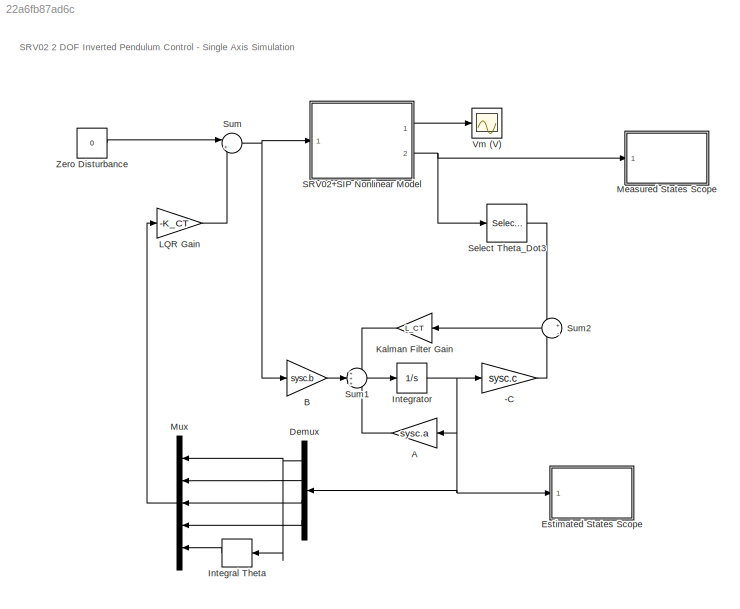
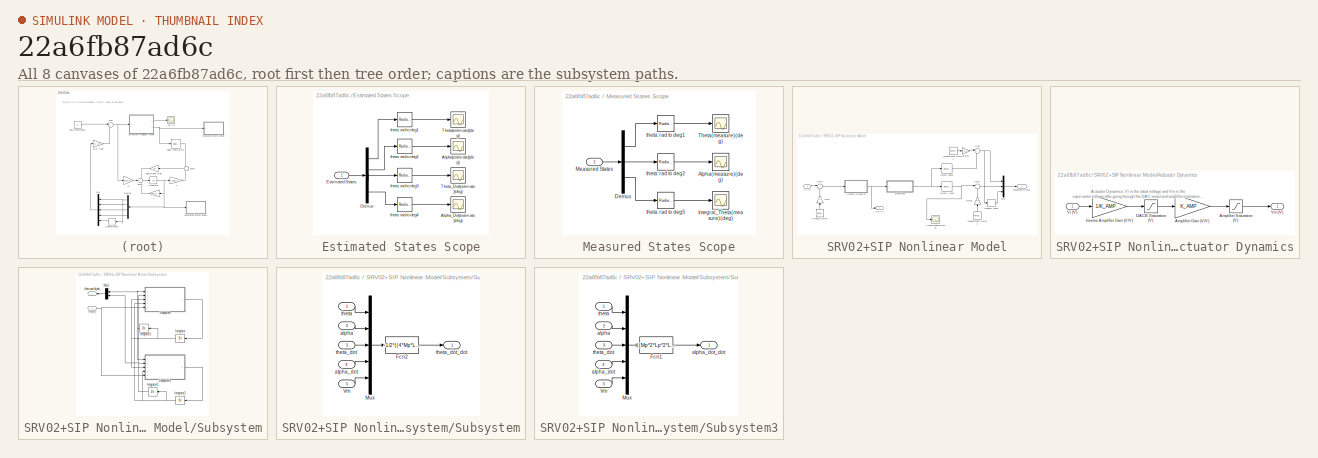
[diagram: thumbnail index - all 8 canvases of the model, root first then tree order]
MODEL slx_22a6fb87ad6c
KIND model
CONFIG AbsTol = auto
CONFIG EnableMultiTasking = on
CONFIG FixedStep = 0.002
CONFIG MaxStep = auto
CONFIG MinStep = auto
CONFIG RelTol = 1e-3
CONFIG SampleTimeConstraint = Unconstrained
CONFIG Solver = ode1
CONFIG SolverName = ode1
CONFIG StartTime = 0.0
CONFIG StopTime = 50
BLOCK [Gain] -C
  Gain = sysc.c
  Multiplication = Matrix(K*u)
  OutDataTypeStr = Inherit: Inherit via internal rule
  ParamDataTypeStr = Inherit: Inherit via internal rule
  SaturateOnIntegerOverflow = off
BLOCK [Gain] A
  Gain = sysc.a
  Multiplication = Matrix(K*u)
  OutDataTypeStr = Inherit: Inherit via internal rule
  ParamDataTypeStr = Inherit: Inherit via internal rule
  SaturateOnIntegerOverflow = off
BLOCK [Gain] B
  Gain = sysc.b
  Multiplication = Matrix(K*u)
  OutDataTypeStr = Inherit: Inherit via internal rule
  ParamDataTypeStr = Inherit: Inherit via internal rule
  SaturateOnIntegerOverflow = off
BLOCK [Demux] Demux
  DisplayOption = bar
  Ports = [1, 4]
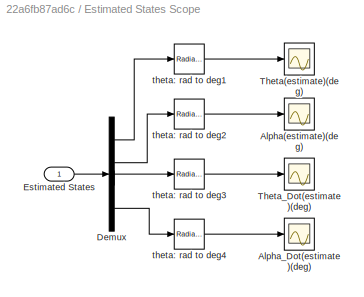
BLOCK [SubSystem] Estimated States Scope
  Ports = [1]
  RequestExecContextInheritance = off
BLOCK [Scope] Estimated States Scope/Alpha(estimate)(deg)
  Floating = off
  NumInputPorts = 1
  Ports = [1]
  ScopeSpecificationString = Simulink.scopes.TimeScopeBlockCfg('CurrentConfiguration', extmgr.ConfigurationSet(extmgr.Configuration('Core','General UI',true),extmgr.Configuration('Core','Source UI',true),extmgr.Configuration('Sources','WiredSimulink',true,'DataLoggingVariableName','data_alpha3','DataLoggingSaveFormat','Array','DataLoggingDecimation','1','DataLoggingDecimateData',true),extmgr.Configuration('Visuals','Time Doma...<+1733ch>
BLOCK [Scope] Estimated States Scope/Alpha_Dot(estimate)(deg)
  Floating = off
  NumInputPorts = 1
  Ports = [1]
  ScopeSpecificationString = C++SS(StrPVP('Location','[451, 291, 779, 463]'),StrPVP('Open','off'),MxPVP('AxesTitles',54,'struct(''axes1'',''%<SignalLabel>'')'),MxPVP('ScopeGraphics',57,'struct(''FigureColor'',''[0.5 0.5 0.5]'',''AxesColor'',''[0 0 0]'',''AxesTickColor'',''[1 1 1]'',''LineColors'',''[1 1 0;1 0 1;0 1 1;1 0 0;0 1 0;0 0 1]'',''LineStyles'',''-|-|-|-|-|-'',''LineWidths'',''[0.5 0.5 0.5 0.5 0.5 0.5]'',''MarkerStyle...<+282ch>
BLOCK [Demux] Estimated States Scope/Demux
  DisplayOption = bar
  Ports = [1, 4]
BLOCK [Inport] Estimated States Scope/Estimated States
  IconDisplay = Port number
BLOCK [Scope] Estimated States Scope/Theta(estimate)(deg)
  Floating = off
  NumInputPorts = 1
  Ports = [1]
  ScopeSpecificationString = Simulink.scopes.TimeScopeBlockCfg('CurrentConfiguration', extmgr.ConfigurationSet(extmgr.Configuration('Core','General UI',true),extmgr.Configuration('Core','Source UI',true),extmgr.Configuration('Sources','WiredSimulink',true,'DataLoggingVariableName','data_theta2','DataLoggingSaveFormat','Array','DataLoggingDecimation','1','DataLoggingDecimateData',true),extmgr.Configuration('Visuals','Time Doma...<+1741ch>
BLOCK [Scope] Estimated States Scope/Theta_Dot(estimate)(deg)
  Floating = off
  NumInputPorts = 1
  Ports = [1]
  ScopeSpecificationString = C++SS(StrPVP('Location','[389, 331, 713, 570]'),StrPVP('Open','off'),MxPVP('AxesTitles',54,'struct(''axes1'',''%<SignalLabel>'')'),MxPVP('ScopeGraphics',57,'struct(''FigureColor'',''[0.5 0.5 0.5]'',''AxesColor'',''[0 0 0]'',''AxesTickColor'',''[1 1 1]'',''LineColors'',''[1 1 0;1 0 1;0 1 1;1 0 0;0 1 0;0 0 1]'',''LineStyles'',''-|-|-|-|-|-'',''LineWidths'',''[0.5 0.5 0.5 0.5 0.5 0.5]'',''MarkerStyle...<+284ch>
BLOCK [Reference] Estimated States Scope/theta: rad to deg1  REF=simulink_extras/Transformations/Radians
to Degrees
  Ports = [1, 1]
  SourceBlock = simulink_extras/Transformations/Radians\nto Degrees
  SourceProductBaseCode = SL
  SourceProductName = Simulink
  SourceType = RadiansToDegrees
BLOCK [Reference] Estimated States Scope/theta: rad to deg2  REF=simulink_extras/Transformations/Radians
to Degrees
  Ports = [1, 1]
  SourceBlock = simulink_extras/Transformations/Radians\nto Degrees
  SourceProductBaseCode = SL
  SourceProductName = Simulink
  SourceType = RadiansToDegrees
BLOCK [Reference] Estimated States Scope/theta: rad to deg3  REF=simulink_extras/Transformations/Radians
to Degrees
  Ports = [1, 1]
  SourceBlock = simulink_extras/Transformations/Radians\nto Degrees
  SourceProductBaseCode = SL
  SourceProductName = Simulink
  SourceType = RadiansToDegrees
BLOCK [Reference] Estimated States Scope/theta: rad to deg4  REF=simulink_extras/Transformations/Radians
to Degrees
  Ports = [1, 1]
  SourceBlock = simulink_extras/Transformations/Radians\nto Degrees
  SourceProductBaseCode = SL
  SourceProductName = Simulink
  SourceType = RadiansToDegrees
BLOCK [DiscreteIntegrator] Integral Theta
  ICPrevOutput = DiscIntNeverNeededParam
  ICPrevScaledInput = DiscIntNeverNeededParam
  Ports = [1, 1]
  SampleTime = 0.002
BLOCK [Integrator] Integrator
  Ports = [1, 1]
BLOCK [Gain] Kalman Filter Gain
  Gain = L_CT
  Multiplication = Matrix(K*u)
  OutDataTypeStr = Inherit: Inherit via internal rule
  ParamDataTypeStr = Inherit: Inherit via internal rule
  SaturateOnIntegerOverflow = off
BLOCK [Gain] LQR Gain
  Gain = -K_CT
  Multiplication = Matrix(K*u)
BLOCK [SubSystem] Measured States Scope
  Ports = [1]
  RequestExecContextInheritance = off
BLOCK [Scope] Measured States Scope/Alpha(measure)(deg)
  Floating = off
  NumInputPorts = 1
  Ports = [1]
  ScopeSpecificationString = Simulink.scopes.TimeScopeBlockCfg('CurrentConfiguration', extmgr.ConfigurationSet(extmgr.Configuration('Core','General UI',true),extmgr.Configuration('Core','Source UI',true),extmgr.Configuration('Sources','WiredSimulink',true,'DataLoggingVariableName','data_alpha3','DataLoggingSaveFormat','Array','DataLoggingDecimation','1','DataLoggingDecimateData',true),extmgr.Configuration('Visuals','Time Doma...<+1733ch>
BLOCK [Demux] Measured States Scope/Demux
  DisplayOption = bar
  Outputs = 3
  Ports = [1, 3]
BLOCK [Scope] Measured States Scope/Integral_Theta(measure)(deg)
  Floating = off
  NumInputPorts = 1
  Ports = [1]
  ScopeSpecificationString = Simulink.scopes.TimeScopeBlockCfg('CurrentConfiguration', extmgr.ConfigurationSet(extmgr.Configuration('Core','General UI',true),extmgr.Configuration('Core','Source UI',true),extmgr.Configuration('Sources','WiredSimulink',true,'DataLoggingVariableName','data_alpha2','DataLoggingSaveFormat','Array','DataLoggingDecimation','1','DataLoggingDecimateData',true),extmgr.Configuration('Visuals','Time Doma...<+1759ch>
BLOCK [Inport] Measured States Scope/Measured States
  IconDisplay = Port number
BLOCK [Scope] Measured States Scope/Theta(measure)(deg)
  Floating = off
  NumInputPorts = 1
  Ports = [1]
  ScopeSpecificationString = Simulink.scopes.TimeScopeBlockCfg('CurrentConfiguration', extmgr.ConfigurationSet(extmgr.Configuration('Core','General UI',true),extmgr.Configuration('Core','Source UI',true),extmgr.Configuration('Sources','WiredSimulink',true,'DataLoggingVariableName','data_theta2','DataLoggingSaveFormat','Array','DataLoggingDecimation','1','DataLoggingDecimateData',true),extmgr.Configuration('Visuals','Time Doma...<+1767ch>
BLOCK [Reference] Measured States Scope/theta: rad to deg1  REF=simulink_extras/Transformations/Radians
to Degrees
  Ports = [1, 1]
  SourceBlock = simulink_extras/Transformations/Radians\nto Degrees
  SourceProductBaseCode = SL
  SourceProductName = Simulink
  SourceType = RadiansToDegrees
BLOCK [Reference] Measured States Scope/theta: rad to deg2  REF=simulink_extras/Transformations/Radians
to Degrees
  Ports = [1, 1]
  SourceBlock = simulink_extras/Transformations/Radians\nto Degrees
  SourceProductBaseCode = SL
  SourceProductName = Simulink
  SourceType = RadiansToDegrees
BLOCK [Reference] Measured States Scope/theta: rad to deg5  REF=simulink_extras/Transformations/Radians
to Degrees
  Ports = [1, 1]
  SourceBlock = simulink_extras/Transformations/Radians\nto Degrees
  SourceProductBaseCode = SL
  SourceProductName = Simulink
  SourceType = RadiansToDegrees
BLOCK [Mux] Mux
  DisplayOption = bar
  Inputs = 5
  Ports = [5, 1]
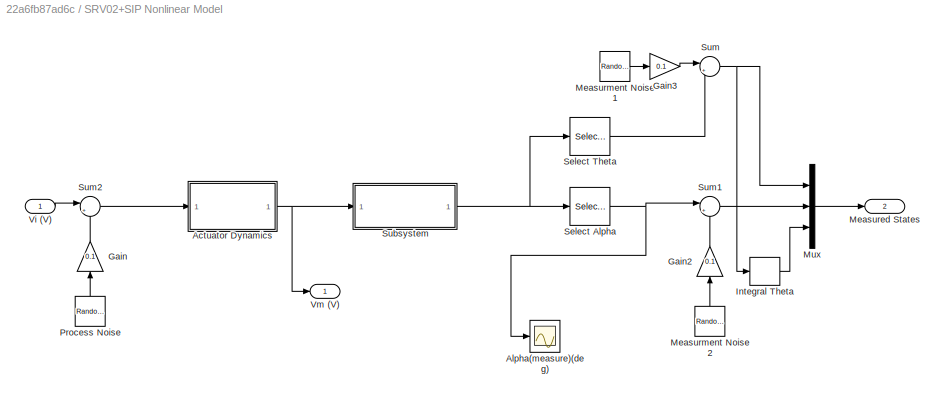
BLOCK [SubSystem] SRV02+SIP Nonlinear Model
  Ports = [1, 2]
  RequestExecContextInheritance = off
BLOCK [SubSystem] SRV02+SIP Nonlinear Model/Actuator Dynamics
  Ports = [1, 1]
  RequestExecContextInheritance = off
BLOCK [Gain] SRV02+SIP Nonlinear Model/Actuator Dynamics/Amplifier Gain (V//V)
  Gain = K_AMP
  OutDataTypeStr = Inherit: Inherit via internal rule
  ParamDataTypeStr = Inherit: Inherit via internal rule
  SaturateOnIntegerOverflow = off
BLOCK [Saturate] SRV02+SIP Nonlinear Model/Actuator Dynamics/Amplifier Saturation (V)
  InputPortMap = u0
  LowerLimit = -VMAX_AMP
  Ports = [1, 1]
  UpperLimit = VMAX_AMP
BLOCK [Saturate] SRV02+SIP Nonlinear Model/Actuator Dynamics/DACB Saturation (V)
  InputPortMap = u0
  LowerLimit = -VMAX_DAC
  Ports = [1, 1]
  UpperLimit = VMAX_DAC
BLOCK [Gain] SRV02+SIP Nonlinear Model/Actuator Dynamics/Inverse Amplifier Gain (V//V)
  Gain = 1/K_AMP
  OutDataTypeStr = Inherit: Inherit via internal rule
  ParamDataTypeStr = Inherit: Inherit via internal rule
  SaturateOnIntegerOverflow = off
BLOCK [Inport] SRV02+SIP Nonlinear Model/Actuator Dynamics/Vi (V)
  IconDisplay = Port number
BLOCK [Outport] SRV02+SIP Nonlinear Model/Actuator Dynamics/Vm (V)
  IconDisplay = Port number
  VectorParamsAs1DForOutWhenUnconnected = off
BLOCK [Scope] SRV02+SIP Nonlinear Model/Alpha(measure)(deg)
  Floating = off
  NumInputPorts = 1
  Ports = [1]
  ScopeSpecificationString = Simulink.scopes.TimeScopeBlockCfg('CurrentConfiguration', extmgr.ConfigurationSet(extmgr.Configuration('Core','General UI',true),extmgr.Configuration('Core','Source UI',true),extmgr.Configuration('Sources','WiredSimulink',true,'DataLoggingVariableName','ScopeData1','DataLoggingSaveFormat','Array','DataLoggingDecimation','1','DataLoggingDecimateData',true),extmgr.Configuration('Visuals','Time Domai...<+1692ch>
BLOCK [Gain] SRV02+SIP Nonlinear Model/Gain
  Gain = 0.1
  Multiplication = Matrix(K*u)
BLOCK [Gain] SRV02+SIP Nonlinear Model/Gain2
  Gain = 0.1
  Multiplication = Matrix(K*u)
BLOCK [Gain] SRV02+SIP Nonlinear Model/Gain3
  Gain = 0.1
  Multiplication = Matrix(K*u)
BLOCK [DiscreteIntegrator] SRV02+SIP Nonlinear Model/Integral Theta
  ICPrevOutput = DiscIntNeverNeededParam
  ICPrevScaledInput = DiscIntNeverNeededParam
  Ports = [1, 1]
  SampleTime = 0.002
BLOCK [Outport] SRV02+SIP Nonlinear Model/Measured States
  IconDisplay = Port number
  Port = 2
  VectorParamsAs1DForOutWhenUnconnected = off
BLOCK [RandomNumber] SRV02+SIP Nonlinear Model/Measurment Noise 1
  Variance = 0.01
BLOCK [RandomNumber] SRV02+SIP Nonlinear Model/Measurment Noise 2
  Variance = 0.01
BLOCK [Mux] SRV02+SIP Nonlinear Model/Mux
  DisplayOption = bar
  Inputs = 3
  Ports = [3, 1]
BLOCK [RandomNumber] SRV02+SIP Nonlinear Model/Process Noise
  Variance = 50
BLOCK [Selector] SRV02+SIP Nonlinear Model/Select Alpha
  IndexOptions = Index vector (dialog)
  Indices = 2
  InputPortWidth = 2
  OutputSizes = 1
  Ports = [1, 1]
BLOCK [Selector] SRV02+SIP Nonlinear Model/Select Theta
  IndexOptions = Index vector (dialog)
  Indices = 1
  InputPortWidth = 2
  OutputSizes = 1
  Ports = [1, 1]
BLOCK [SubSystem] SRV02+SIP Nonlinear Model/Subsystem
  Ports = [1, 1]
  RequestExecContextInheritance = off
BLOCK [Integrator] SRV02+SIP Nonlinear Model/Subsystem/Integrator
  InitialCondition = init_condi(3)
  Ports = [1, 1]
BLOCK [Integrator] SRV02+SIP Nonlinear Model/Subsystem/Integrator1
  InitialCondition = init_condi(1)
  Ports = [1, 1]
BLOCK [Integrator] SRV02+SIP Nonlinear Model/Subsystem/Integrator2
  InitialCondition = init_condi(4)
  Ports = [1, 1]
BLOCK [Integrator] SRV02+SIP Nonlinear Model/Subsystem/Integrator3
  InitialCondition = init_condi(2)
  Ports = [1, 1]
BLOCK [Mux] SRV02+SIP Nonlinear Model/Subsystem/Mux1
  DisplayOption = bar
  Inputs = 2
  Ports = [2, 1]
BLOCK [SubSystem] SRV02+SIP Nonlinear Model/Subsystem/Subsystem
  Ports = [5, 1]
  RequestExecContextInheritance = off
BLOCK [Fcn] SRV02+SIP Nonlinear Model/Subsystem/Subsystem/Fcn2
  Expr = -1/2*((4*Mp*Lp^2*u(2)*u(1)*u(4)-8*Co*u(5)+8*Dr*u(3))*Jp+(Mp^2*Lp^4*u(2)*u(3)+4*Mp*Lp*Lr*Dp)*u(4))/((4*Jr+4*Mp*Lr^2)*Jp+Mp*Lp^2*Jr)-(-1/2)*((Mp^2*Lp^3*Lr*u(3)^2+20*Mp^2*Lp^2*Lr*g)*u(2)-2*Mp*Lp^2*Dr*u(3)+2*Mp*Lp^2*Co*u(5))/((4*Jr+4*Mp*Lr^2)*Jp+Mp*Lp^2*Jr)
BLOCK [Mux] SRV02+SIP Nonlinear Model/Subsystem/Subsystem/Mux
  DisplayOption = bar
  Inputs = 5
  Ports = [5, 1]
BLOCK [Inport] SRV02+SIP Nonlinear Model/Subsystem/Subsystem/Vm
  IconDisplay = Port number
  Port = 5
BLOCK [Inport] SRV02+SIP Nonlinear Model/Subsystem/Subsystem/alpha
  IconDisplay = Port number
  Port = 2
BLOCK [Inport] SRV02+SIP Nonlinear Model/Subsystem/Subsystem/alpha_dot
  IconDisplay = Port number
  Port = 4
BLOCK [Inport] SRV02+SIP Nonlinear Model/Subsystem/Subsystem/theta
  IconDisplay = Port number
BLOCK [Inport] SRV02+SIP Nonlinear Model/Subsystem/Subsystem/theta_dot
  IconDisplay = Port number
  Port = 3
BLOCK [Outport] SRV02+SIP Nonlinear Model/Subsystem/Subsystem/theta_dot_dot
  IconDisplay = Port number
  VectorParamsAs1DForOutWhenUnconnected = off
BLOCK [SubSystem] SRV02+SIP Nonlinear Model/Subsystem/Subsystem3
  Ports = [5, 1]
  RequestExecContextInheritance = off
BLOCK [Fcn] SRV02+SIP Nonlinear Model/Subsystem/Subsystem3/Fcn1
  Expr = ((Mp^2*Lp^2*Lr^2+Mp*Lp^2*Jr)*u(3)^2+20*Jr*Mp*Lp*g+20*Mp^2*Lr^2*Lp*g)*u(2)/((4*Jr+4*Mp*Lr^2)*Jp+Mp*Lp^2*Jr)+(2*Mp*Lr*Lp*Co*u(5)-2*Mp*Lr*Lp*Dr*u(3)-(Mp^2*Lp^3*Lr*u(2)*u(3)+4*Jr*Dp+4*Mp*Lr^2*Dp)*u(4))/((4*Jr+4*Mp*Lr^2)*Jp+Mp*Lp^2*Jr)
BLOCK [Mux] SRV02+SIP Nonlinear Model/Subsystem/Subsystem3/Mux
  DisplayOption = bar
  Inputs = 5
  Ports = [5, 1]
BLOCK [Inport] SRV02+SIP Nonlinear Model/Subsystem/Subsystem3/Vm
  IconDisplay = Port number
  Port = 5
BLOCK [Inport] SRV02+SIP Nonlinear Model/Subsystem/Subsystem3/alpha
  IconDisplay = Port number
  Port = 2
BLOCK [Inport] SRV02+SIP Nonlinear Model/Subsystem/Subsystem3/alpha_dot
  IconDisplay = Port number
  Port = 4
BLOCK [Outport] SRV02+SIP Nonlinear Model/Subsystem/Subsystem3/alpha_dot_dot
  IconDisplay = Port number
  VectorParamsAs1DForOutWhenUnconnected = off
BLOCK [Inport] SRV02+SIP Nonlinear Model/Subsystem/Subsystem3/theta
  IconDisplay = Port number
BLOCK [Inport] SRV02+SIP Nonlinear Model/Subsystem/Subsystem3/theta_dot
  IconDisplay = Port number
  Port = 3
BLOCK [Inport] SRV02+SIP Nonlinear Model/Subsystem/Vm(V)
  IconDisplay = Port number
BLOCK [Outport] SRV02+SIP Nonlinear Model/Subsystem/theta and alpha
  IconDisplay = Port number
  VectorParamsAs1DForOutWhenUnconnected = off
BLOCK [Sum] SRV02+SIP Nonlinear Model/Sum
  IconShape = round
  InputSameDT = off
  Inputs = |++
  OutDataTypeStr = Inherit: Inherit via internal rule
  Ports = [2, 1]
  SaturateOnIntegerOverflow = off
BLOCK [Sum] SRV02+SIP Nonlinear Model/Sum1
  IconShape = round
  InputSameDT = off
  Inputs = |++
  OutDataTypeStr = Inherit: Inherit via internal rule
  Ports = [2, 1]
  SaturateOnIntegerOverflow = off
BLOCK [Sum] SRV02+SIP Nonlinear Model/Sum2
  IconShape = round
  InputSameDT = off
  Inputs = |++
  OutDataTypeStr = Inherit: Inherit via internal rule
  Ports = [2, 1]
  SaturateOnIntegerOverflow = off
BLOCK [Inport] SRV02+SIP Nonlinear Model/Vi (V)
  IconDisplay = Port number
BLOCK [Outport] SRV02+SIP Nonlinear Model/Vm (V)
  IconDisplay = Port number
  VectorParamsAs1DForOutWhenUnconnected = off
BLOCK [Selector] Select Theta_Dot3
  IndexOptions = Index vector (dialog)
  Indices = [1 2]
  InputPortWidth = 3
  OutputSizes = 1
  Ports = [1, 1]
BLOCK [Sum] Sum
  IconShape = round
  InputSameDT = off
  Inputs = |++
  OutDataTypeStr = Inherit: Inherit via internal rule
  Ports = [2, 1]
  SaturateOnIntegerOverflow = off
BLOCK [Sum] Sum1
  IconShape = round
  InputSameDT = off
  Inputs = +++
  OutDataTypeStr = Inherit: Inherit via internal rule
  Ports = [3, 1]
  SaturateOnIntegerOverflow = off
BLOCK [Sum] Sum2
  IconShape = round
  InputSameDT = off
  Inputs = +|-
  OutDataTypeStr = Inherit: Inherit via internal rule
  Ports = [2, 1]
  SaturateOnIntegerOverflow = off
BLOCK [Scope] Vm (V)
  Floating = off
  NumInputPorts = 1
  Ports = [1]
  ScopeSpecificationString = C++SS(StrPVP('Location','[31, 96, 1299, 819]'),StrPVP('Open','off'),StrPVP('TickLabels','on'),MxPVP('AxesTitles',54,'struct(''axes1'',''%<SignalLabel>'')'),StrPVP('TimeRange','5'),StrPVP('YMin','-1.17798'),StrPVP('YMax','1.242'),StrPVP('SaveName','data_vm'),StrPVP('LimitDataPoints','off'),StrPVP('DataFormat','Array'),StrPVP('Decimation','1'),StrPVP('BlockParamSampleInput','off'))
BLOCK [Constant] Zero Disturbance
  Value = 0
ANNOTATION (root): SRV02 2 DOF Inverted Pendulum Control - Single Axis Simulation
ANNOTATION SRV02+SIP Nonlinear Model/Actuator Dynamics: Actuator Dynamics: Vi is the ideal voltage and Vm is the input motor voltage after going through the DAC board and amplifier limitiations.
LINE -C:1 -> Sum2:2
LINE A:1 -> Sum1:3
LINE B:1 -> Sum1:2
NET Demux:1 -> Integral Theta:1, Mux:1
LINE Demux:2 -> Mux:2
LINE Demux:3 -> Mux:3
LINE Demux:4 -> Mux:4
LINE Estimated States Scope/Demux:1 -> Estimated States Scope/theta: rad to deg1:1
LINE Estimated States Scope/Demux:2 -> Estimated States Scope/theta: rad to deg2:1
LINE Estimated States Scope/Demux:3 -> Estimated States Scope/theta: rad to deg3:1
LINE Estimated States Scope/Demux:4 -> Estimated States Scope/theta: rad to deg4:1
LINE Estimated States Scope/Estimated States:1 -> Estimated States Scope/Demux:1
LINE Estimated States Scope/theta: rad to deg1:1 -> Estimated States Scope/Theta(estimate)(deg):1
LINE Estimated States Scope/theta: rad to deg2:1 -> Estimated States Scope/Alpha(estimate)(deg):1
LINE Estimated States Scope/theta: rad to deg3:1 -> Estimated States Scope/Theta_Dot(estimate)(deg):1
LINE Estimated States Scope/theta: rad to deg4:1 -> Estimated States Scope/Alpha_Dot(estimate)(deg):1
LINE Integral Theta:1 -> Mux:5
NET Integrator:1 -> -C:1, A:1, Demux:1, Estimated States Scope:1
LINE Kalman Filter Gain:1 -> Sum1:1
LINE LQR Gain:1 -> Sum:2
LINE Measured States Scope/Demux:1 -> Measured States Scope/theta: rad to deg1:1
LINE Measured States Scope/Demux:2 -> Measured States Scope/theta: rad to deg2:1
LINE Measured States Scope/Demux:3 -> Measured States Scope/theta: rad to deg5:1
LINE Measured States Scope/Measured States:1 -> Measured States Scope/Demux:1
LINE Measured States Scope/theta: rad to deg1:1 -> Measured States Scope/Theta(measure)(deg):1
LINE Measured States Scope/theta: rad to deg2:1 -> Measured States Scope/Alpha(measure)(deg):1
LINE Measured States Scope/theta: rad to deg5:1 -> Measured States Scope/Integral_Theta(measure)(deg):1
LINE Mux:1 -> LQR Gain:1
LINE SRV02+SIP Nonlinear Model/Actuator Dynamics/Amplifier Gain (V//V):1 -> SRV02+SIP Nonlinear Model/Actuator Dynamics/Amplifier Saturation (V):1
LINE SRV02+SIP Nonlinear Model/Actuator Dynamics/Amplifier Saturation (V):1 -> SRV02+SIP Nonlinear Model/Actuator Dynamics/Vm (V):1
LINE SRV02+SIP Nonlinear Model/Actuator Dynamics/DACB Saturation (V):1 -> SRV02+SIP Nonlinear Model/Actuator Dynamics/Amplifier Gain (V//V):1
LINE SRV02+SIP Nonlinear Model/Actuator Dynamics/Inverse Amplifier Gain (V//V):1 -> SRV02+SIP Nonlinear Model/Actuator Dynamics/DACB Saturation (V):1
LINE SRV02+SIP Nonlinear Model/Actuator Dynamics/Vi (V):1 -> SRV02+SIP Nonlinear Model/Actuator Dynamics/Inverse Amplifier Gain (V//V):1
NET SRV02+SIP Nonlinear Model/Actuator Dynamics:1 -> SRV02+SIP Nonlinear Model/Subsystem:1, SRV02+SIP Nonlinear Model/Vm (V):1
LINE SRV02+SIP Nonlinear Model/Gain2:1 -> SRV02+SIP Nonlinear Model/Sum1:2
LINE SRV02+SIP Nonlinear Model/Gain3:1 -> SRV02+SIP Nonlinear Model/Sum:1
LINE SRV02+SIP Nonlinear Model/Gain:1 -> SRV02+SIP Nonlinear Model/Sum2:2
LINE SRV02+SIP Nonlinear Model/Integral Theta:1 -> SRV02+SIP Nonlinear Model/Mux:3
LINE SRV02+SIP Nonlinear Model/Measurment Noise 1:1 -> SRV02+SIP Nonlinear Model/Gain3:1
LINE SRV02+SIP Nonlinear Model/Measurment Noise 2:1 -> SRV02+SIP Nonlinear Model/Gain2:1
LINE SRV02+SIP Nonlinear Model/Mux:1 -> SRV02+SIP Nonlinear Model/Measured States:1
LINE SRV02+SIP Nonlinear Model/Process Noise:1 -> SRV02+SIP Nonlinear Model/Gain:1
NET SRV02+SIP Nonlinear Model/Select Alpha:1 -> SRV02+SIP Nonlinear Model/Alpha(measure)(deg):1, SRV02+SIP Nonlinear Model/Sum1:1
LINE SRV02+SIP Nonlinear Model/Select Theta:1 -> SRV02+SIP Nonlinear Model/Sum:2
NET SRV02+SIP Nonlinear Model/Subsystem/Integrator1:1 -> SRV02+SIP Nonlinear Model/Subsystem/Mux1:1, SRV02+SIP Nonlinear Model/Subsystem/Subsystem3:1, SRV02+SIP Nonlinear Model/Subsystem/Subsystem:1
NET SRV02+SIP Nonlinear Model/Subsystem/Integrator2:1 -> SRV02+SIP Nonlinear Model/Subsystem/Integrator3:1, SRV02+SIP Nonlinear Model/Subsystem/Subsystem3:4, SRV02+SIP Nonlinear Model/Subsystem/Subsystem:4
NET SRV02+SIP Nonlinear Model/Subsystem/Integrator3:1 -> SRV02+SIP Nonlinear Model/Subsystem/Mux1:2, SRV02+SIP Nonlinear Model/Subsystem/Subsystem3:2, SRV02+SIP Nonlinear Model/Subsystem/Subsystem:2
NET SRV02+SIP Nonlinear Model/Subsystem/Integrator:1 -> SRV02+SIP Nonlinear Model/Subsystem/Integrator1:1, SRV02+SIP Nonlinear Model/Subsystem/Subsystem3:3, SRV02+SIP Nonlinear Model/Subsystem/Subsystem:3
LINE SRV02+SIP Nonlinear Model/Subsystem/Mux1:1 -> SRV02+SIP Nonlinear Model/Subsystem/theta and alpha:1
LINE SRV02+SIP Nonlinear Model/Subsystem/Subsystem/Fcn2:1 -> SRV02+SIP Nonlinear Model/Subsystem/Subsystem/theta_dot_dot:1
LINE SRV02+SIP Nonlinear Model/Subsystem/Subsystem/Mux:1 -> SRV02+SIP Nonlinear Model/Subsystem/Subsystem/Fcn2:1
LINE SRV02+SIP Nonlinear Model/Subsystem/Subsystem/Vm:1 -> SRV02+SIP Nonlinear Model/Subsystem/Subsystem/Mux:5
LINE SRV02+SIP Nonlinear Model/Subsystem/Subsystem/alpha:1 -> SRV02+SIP Nonlinear Model/Subsystem/Subsystem/Mux:2
LINE SRV02+SIP Nonlinear Model/Subsystem/Subsystem/alpha_dot:1 -> SRV02+SIP Nonlinear Model/Subsystem/Subsystem/Mux:4
LINE SRV02+SIP Nonlinear Model/Subsystem/Subsystem/theta:1 -> SRV02+SIP Nonlinear Model/Subsystem/Subsystem/Mux:1
LINE SRV02+SIP Nonlinear Model/Subsystem/Subsystem/theta_dot:1 -> SRV02+SIP Nonlinear Model/Subsystem/Subsystem/Mux:3
LINE SRV02+SIP Nonlinear Model/Subsystem/Subsystem3/Fcn1:1 -> SRV02+SIP Nonlinear Model/Subsystem/Subsystem3/alpha_dot_dot:1
LINE SRV02+SIP Nonlinear Model/Subsystem/Subsystem3/Mux:1 -> SRV02+SIP Nonlinear Model/Subsystem/Subsystem3/Fcn1:1
LINE SRV02+SIP Nonlinear Model/Subsystem/Subsystem3/Vm:1 -> SRV02+SIP Nonlinear Model/Subsystem/Subsystem3/Mux:5
LINE SRV02+SIP Nonlinear Model/Subsystem/Subsystem3/alpha:1 -> SRV02+SIP Nonlinear Model/Subsystem/Subsystem3/Mux:2
LINE SRV02+SIP Nonlinear Model/Subsystem/Subsystem3/alpha_dot:1 -> SRV02+SIP Nonlinear Model/Subsystem/Subsystem3/Mux:4
LINE SRV02+SIP Nonlinear Model/Subsystem/Subsystem3/theta:1 -> SRV02+SIP Nonlinear Model/Subsystem/Subsystem3/Mux:1
LINE SRV02+SIP Nonlinear Model/Subsystem/Subsystem3/theta_dot:1 -> SRV02+SIP Nonlinear Model/Subsystem/Subsystem3/Mux:3
LINE SRV02+SIP Nonlinear Model/Subsystem/Subsystem3:1 -> SRV02+SIP Nonlinear Model/Subsystem/Integrator2:1
LINE SRV02+SIP Nonlinear Model/Subsystem/Subsystem:1 -> SRV02+SIP Nonlinear Model/Subsystem/Integrator:1
NET SRV02+SIP Nonlinear Model/Subsystem/Vm(V):1 -> SRV02+SIP Nonlinear Model/Subsystem/Subsystem3:5, SRV02+SIP Nonlinear Model/Subsystem/Subsystem:5
NET SRV02+SIP Nonlinear Model/Subsystem:1 -> SRV02+SIP Nonlinear Model/Select Alpha:1, SRV02+SIP Nonlinear Model/Select Theta:1
LINE SRV02+SIP Nonlinear Model/Sum1:1 -> SRV02+SIP Nonlinear Model/Mux:2
LINE SRV02+SIP Nonlinear Model/Sum2:1 -> SRV02+SIP Nonlinear Model/Actuator Dynamics:1
NET SRV02+SIP Nonlinear Model/Sum:1 -> SRV02+SIP Nonlinear Model/Integral Theta:1, SRV02+SIP Nonlinear Model/Mux:1
LINE SRV02+SIP Nonlinear Model/Vi (V):1 -> SRV02+SIP Nonlinear Model/Sum2:1
LINE SRV02+SIP Nonlinear Model:1 -> Vm (V):1
NET SRV02+SIP Nonlinear Model:2 -> Measured States Scope:1, Select Theta_Dot3:1
LINE Select Theta_Dot3:1 -> Sum2:1
LINE Sum1:1 -> Integrator:1
LINE Sum2:1 -> Kalman Filter Gain:1
NET Sum:1 -> B:1, SRV02+SIP Nonlinear Model:1
LINE Zero Disturbance:1 -> Sum:1
note: NET lines group one-source signal fan-out (src -> all destinations, sorted); 1:1 wires keep LINE
